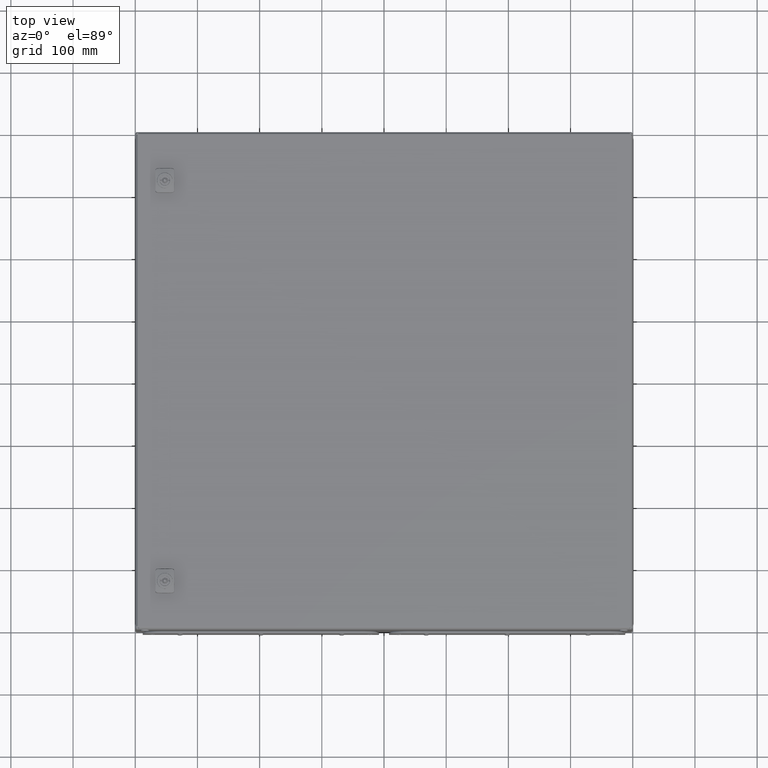
[diagram: clean part render]
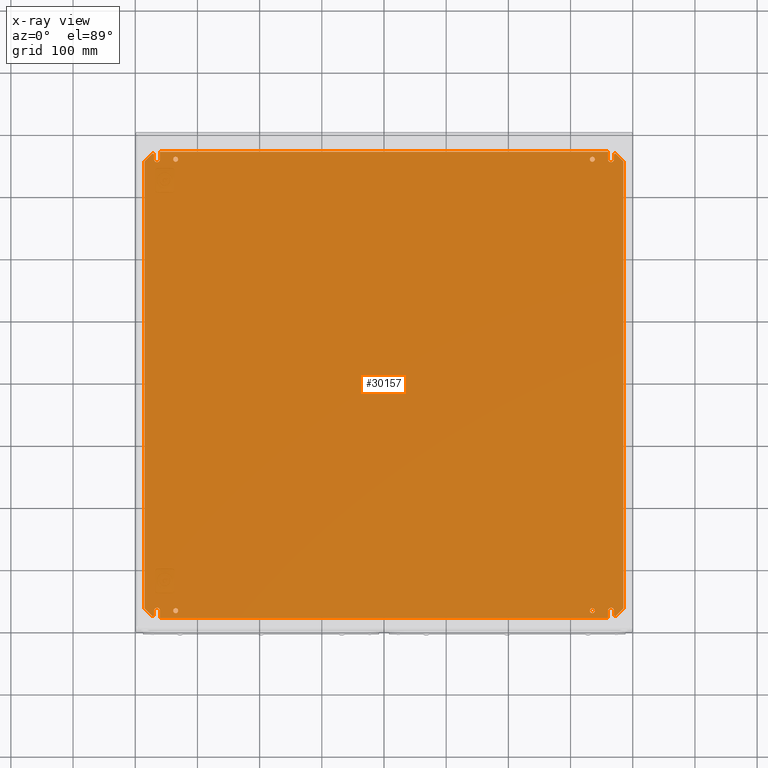
[diagram: x-ray — body ghosted, one internal face saturated and labeled with its STEP entity id]
A machine part, top view, then the same camera in x-ray: the body is ghosted and one INTERNAL B-rep face — a face not visible from any outside direction — is saturated and labeled: STEP entity #30157.
In plain terms, the highlighted planar face has unit normal (0, 0, 1).
Its self-contained STEP definition (entity closure, byte-faithful):
#29948 = EDGE_CURVE ( 'NONE', #29949, #30089, #35826, .T. ) ;
#29949 = VERTEX_POINT ( 'NONE', #35817 ) ;
#30023 = VERTEX_POINT ( 'NONE', #35988 ) ;
#30028 = EDGE_CURVE ( 'NONE', #30029, #30023, #35981, .T. ) ;
#30029 = VERTEX_POINT ( 'NONE', #35974 ) ;
#30054 = VERTEX_POINT ( 'NONE', #36048 ) ;
#30056 = EDGE_CURVE ( 'NONE', #30054, #30058, #36042, .T. ) ;
#30058 = VERTEX_POINT ( 'NONE', #36034 ) ;
#30089 = VERTEX_POINT ( 'NONE', #36117 ) ;
#30091 = VERTEX_POINT ( 'NONE', #36115 ) ;
#30093 = ORIENTED_EDGE ( 'NONE', *, *, #30096, .T. ) ;
#30096 = EDGE_CURVE ( 'NONE', #30091, #30097, #36110, .T. ) ;
#30097 = VERTEX_POINT ( 'NONE', #36104 ) ;
#30098 = ORIENTED_EDGE ( 'NONE', *, *, #30099, .T. ) ;
#30099 = EDGE_CURVE ( 'NONE', #30097, #30101, #36100, .T. ) ;
#30101 = VERTEX_POINT ( 'NONE', #36093 ) ;
#30102 = ORIENTED_EDGE ( 'NONE', *, *, #30104, .F. ) ;
#30104 = EDGE_CURVE ( 'NONE', #30106, #30101, #36088, .T. ) ;
#30106 = VERTEX_POINT ( 'NONE', #36082 ) ;
#30108 = VERTEX_POINT ( 'NONE', #36079 ) ;
#30110 = ORIENTED_EDGE ( 'NONE', *, *, #30112, .T. ) ;
#30112 = EDGE_CURVE ( 'NONE', #30089, #29949, #36073, .T. ) ;
#30113 = EDGE_LOOP ( 'NONE', ( #30114, #30118 ) ) ;
#30114 = ORIENTED_EDGE ( 'NONE', *, *, #30116, .F. ) ;
#30116 = EDGE_CURVE ( 'NONE', #30058, #30054, #36206, .T. ) ;
#30118 = ORIENTED_EDGE ( 'NONE', *, *, #30056, .F. ) ;
#30122 = EDGE_LOOP ( 'NONE', ( #30124, #30126 ) ) ;
#30124 = ORIENTED_EDGE ( 'NONE', *, *, #30028, .T. ) ;
#30126 = ORIENTED_EDGE ( 'NONE', *, *, #30127, .T. ) ;
#30127 = EDGE_CURVE ( 'NONE', #30023, #30029, #36196, .T. ) ;
#30129 = EDGE_LOOP ( 'NONE', ( #30131, #30136 ) ) ;
#30131 = ORIENTED_EDGE ( 'NONE', *, *, #30134, .F. ) ;
#30134 = EDGE_CURVE ( 'NONE', #30153, #30147, #36185, .T. ) ;
#30136 = ORIENTED_EDGE ( 'NONE', *, *, #30152, .F. ) ;
#30147 = VERTEX_POINT ( 'NONE', #36152 ) ;
#30152 = EDGE_CURVE ( 'NONE', #30147, #30153, #36146, .T. ) ;
#30153 = VERTEX_POINT ( 'NONE', #36148 ) ;
#30157 = ADVANCED_FACE ( 'NONE', ( #36273, #36271, #36270, #36268, #36266 ), #36261, .T. ) ;
#30161 = EDGE_LOOP ( 'NONE', ( #30163, #30110 ) ) ;
#30163 = ORIENTED_EDGE ( 'NONE', *, *, #29948, .T. ) ;
#30168 = EDGE_CURVE ( 'NONE', #30215, #30216, #36237, .T. ) ;
#30171 = ORIENTED_EDGE ( 'NONE', *, *, #30173, .F. ) ;
#30173 = EDGE_CURVE ( 'NONE', #30175, #30216, #36229, .T. ) ;
#30175 = VERTEX_POINT ( 'NONE', #36221 ) ;
#30176 = ORIENTED_EDGE ( 'NONE', *, *, #30177, .F. ) ;
#30177 = EDGE_CURVE ( 'NONE', #30179, #30175, #36216, .T. ) ;
#30179 = VERTEX_POINT ( 'NONE', #36354 ) ;
#30181 = ORIENTED_EDGE ( 'NONE', *, *, #30184, .F. ) ;
#30184 = EDGE_CURVE ( 'NONE', #30186, #30179, #36350, .T. ) ;
#30186 = VERTEX_POINT ( 'NONE', #36343 ) ;
#30188 = ORIENTED_EDGE ( 'NONE', *, *, #30189, .F. ) ;
#30189 = EDGE_CURVE ( 'NONE', #30190, #30186, #36338, .T. ) ;
#30190 = VERTEX_POINT ( 'NONE', #36329 ) ;
#30191 = ORIENTED_EDGE ( 'NONE', *, *, #30193, .T. ) ;
#30193 = EDGE_CURVE ( 'NONE', #30239, #30241, #36325, .T. ) ;
#30195 = ORIENTED_EDGE ( 'NONE', *, *, #30197, .T. ) ;
#30197 = EDGE_CURVE ( 'NONE', #30241, #30199, #36314, .T. ) ;
#30199 = VERTEX_POINT ( 'NONE', #36307 ) ;
#30201 = ORIENTED_EDGE ( 'NONE', *, *, #30202, .T. ) ;
#30202 = EDGE_CURVE ( 'NONE', #30199, #30203, #36302, .T. ) ;
#30203 = VERTEX_POINT ( 'NONE', #36295 ) ;
#30205 = ORIENTED_EDGE ( 'NONE', *, *, #30207, .T. ) ;
#30207 = EDGE_CURVE ( 'NONE', #30203, #30209, #36289, .T. ) ;
#30209 = VERTEX_POINT ( 'NONE', #36425 ) ;
#30212 = ORIENTED_EDGE ( 'NONE', *, *, #30214, .T. ) ;
#30214 = EDGE_CURVE ( 'NONE', #30209, #30215, #36421, .T. ) ;
#30215 = VERTEX_POINT ( 'NONE', #36415 ) ;
#30216 = VERTEX_POINT ( 'NONE', #36413 ) ;
#30217 = ORIENTED_EDGE ( 'NONE', *, *, #30218, .F. ) ;
#30218 = EDGE_CURVE ( 'NONE', #30108, #30106, #36407, .T. ) ;
#30220 = ORIENTED_EDGE ( 'NONE', *, *, #30221, .F. ) ;
#30221 = EDGE_CURVE ( 'NONE', #30224, #30108, #36396, .T. ) ;
#30224 = VERTEX_POINT ( 'NONE', #36389 ) ;
#30226 = ORIENTED_EDGE ( 'NONE', *, *, #30228, .F. ) ;
#30228 = EDGE_CURVE ( 'NONE', #30229, #30224, #36383, .T. ) ;
#30229 = VERTEX_POINT ( 'NONE', #36375 ) ;
#30230 = ORIENTED_EDGE ( 'NONE', *, *, #30231, .F. ) ;
#30231 = EDGE_CURVE ( 'NONE', #30233, #30229, #36371, .T. ) ;
#30233 = VERTEX_POINT ( 'NONE', #36364 ) ;
#30235 = ORIENTED_EDGE ( 'NONE', *, *, #30237, .T. ) ;
#30237 = EDGE_CURVE ( 'NONE', #30233, #30239, #36360, .T. ) ;
#30239 = VERTEX_POINT ( 'NONE', #36499 ) ;
#30241 = VERTEX_POINT ( 'NONE', #36497 ) ;
#30244 = EDGE_LOOP ( 'NONE', ( #30245, #30093, #30098, #30102, #30217, #30220, #30226, #30230, #30235, #30191, #30195, #30201, #30205, #30212, #30323, #30171, #30176, #30181, #30188, #30298, #30304, #30308, #30313, #30318 ) ) ;
#30245 = ORIENTED_EDGE ( 'NONE', *, *, #30246, .T. ) ;
#30246 = EDGE_CURVE ( 'NONE', #30248, #30091, #36490, .T. ) ;
#30248 = VERTEX_POINT ( 'NONE', #36482 ) ;
#30298 = ORIENTED_EDGE ( 'NONE', *, *, #30300, .F. ) ;
#30300 = EDGE_CURVE ( 'NONE', #30302, #30190, #36534, .T. ) ;
#30302 = VERTEX_POINT ( 'NONE', #36526 ) ;
#30304 = ORIENTED_EDGE ( 'NONE', *, *, #30306, .T. ) ;
#30306 = EDGE_CURVE ( 'NONE', #30302, #30307, #36522, .T. ) ;
#30307 = VERTEX_POINT ( 'NONE', #36515 ) ;
#30308 = ORIENTED_EDGE ( 'NONE', *, *, #30309, .T. ) ;
#30309 = EDGE_CURVE ( 'NONE', #30307, #30311, #36510, .T. ) ;
#30311 = VERTEX_POINT ( 'NONE', #36503 ) ;
#30313 = ORIENTED_EDGE ( 'NONE', *, *, #30315, .T. ) ;
#30315 = EDGE_CURVE ( 'NONE', #30311, #30317, #36646, .T. ) ;
#30317 = VERTEX_POINT ( 'NONE', #36638 ) ;
#30318 = ORIENTED_EDGE ( 'NONE', *, *, #30319, .T. ) ;
#30319 = EDGE_CURVE ( 'NONE', #30317, #30248, #36634, .T. ) ;
#30323 = ORIENTED_EDGE ( 'NONE', *, *, #30168, .T. ) ;
#35817 = CARTESIAN_POINT ( 'NONE',  ( -330.9999999999999400, 362.9999999999998900, 2.499999999997726300 ) ) ;
#35819 = DIRECTION ( 'NONE',  ( -1.000000000000000000, 0.0000000000000000000, 0.0000000000000000000 ) ) ;
#35820 = DIRECTION ( 'NONE',  ( 0.0000000000000000000, 0.0000000000000000000, -1.000000000000000000 ) ) ;
#35822 = CARTESIAN_POINT ( 'NONE',  ( -334.9999999999999400, 362.9999999999998900, 2.499999999997726300 ) ) ;
#35824 = AXIS2_PLACEMENT_3D ( 'NONE', #35822, #35820, #35819 ) ;
#35826 = CIRCLE ( 'NONE', #35824, 4.000000000000003600 ) ;
#35974 = CARTESIAN_POINT ( 'NONE',  ( 338.9999999999999400, -362.9999999999998900, 2.499999999997726300 ) ) ;
#35976 = DIRECTION ( 'NONE',  ( 1.000000000000000000, 0.0000000000000000000, 0.0000000000000000000 ) ) ;
#35977 = DIRECTION ( 'NONE',  ( 0.0000000000000000000, 0.0000000000000000000, -1.000000000000000000 ) ) ;
#35978 = CARTESIAN_POINT ( 'NONE',  ( 334.9999999999999400, -362.9999999999998900, 2.499999999997726300 ) ) ;
#35980 = AXIS2_PLACEMENT_3D ( 'NONE', #35978, #35977, #35976 ) ;
#35981 = CIRCLE ( 'NONE', #35980, 4.000000000000003600 ) ;
#35988 = CARTESIAN_POINT ( 'NONE',  ( 330.9999999999999400, -362.9999999999998900, 2.499999999997726300 ) ) ;
#36034 = CARTESIAN_POINT ( 'NONE',  ( -330.9999999999999400, -362.9999999999998900, 2.499999999997726300 ) ) ;
#36036 = DIRECTION ( 'NONE',  ( -1.000000000000000000, 0.0000000000000000000, 0.0000000000000000000 ) ) ;
#36038 = DIRECTION ( 'NONE',  ( 0.0000000000000000000, 0.0000000000000000000, 1.000000000000000000 ) ) ;
#36039 = CARTESIAN_POINT ( 'NONE',  ( -334.9999999999999400, -362.9999999999998900, 2.499999999997726300 ) ) ;
#36040 = AXIS2_PLACEMENT_3D ( 'NONE', #36039, #36038, #36036 ) ;
#36042 = CIRCLE ( 'NONE', #36040, 4.000000000000003600 ) ;
#36048 = CARTESIAN_POINT ( 'NONE',  ( -338.9999999999999400, -362.9999999999998900, 2.499999999997726300 ) ) ;
#36067 = DIRECTION ( 'NONE',  ( -1.000000000000000000, 0.0000000000000000000, 0.0000000000000000000 ) ) ;
#36068 = DIRECTION ( 'NONE',  ( 0.0000000000000000000, 0.0000000000000000000, -1.000000000000000000 ) ) ;
#36070 = CARTESIAN_POINT ( 'NONE',  ( -334.9999999999999400, 362.9999999999998900, 2.499999999997726300 ) ) ;
#36071 = AXIS2_PLACEMENT_3D ( 'NONE', #36070, #36068, #36067 ) ;
#36073 = CIRCLE ( 'NONE', #36071, 4.000000000000003600 ) ;
#36075 = CARTESIAN_POINT ( 'NONE',  ( -334.9999999999999400, -362.9999999999998900, 2.499999999997726300 ) ) ;
#36079 = CARTESIAN_POINT ( 'NONE',  ( -369.7500000000000000, -369.9999999999998900, 2.499999999997726300 ) ) ;
#36082 = CARTESIAN_POINT ( 'NONE',  ( -373.1642135623730500, -371.4142135623730500, 2.499999999997726300 ) ) ;
#36083 = DIRECTION ( 'NONE',  ( -0.7071067811865507900, 0.7071067811865441300, 0.0000000000000000000 ) ) ;
#36085 = VECTOR ( 'NONE', #36083, 1000.000000000000100 ) ;
#36086 = CARTESIAN_POINT ( 'NONE',  ( -373.1642135623730500, -371.4142135623730500, 2.499999999997726300 ) ) ;
#36088 = LINE ( 'NONE', #36086, #36085 ) ;
#36093 = CARTESIAN_POINT ( 'NONE',  ( -384.9999999999998900, -359.5784271247462100, 2.500000000000000000 ) ) ;
#36095 = DIRECTION ( 'NONE',  ( 1.480297366166875800E-016, -1.000000000000000000, 0.0000000000000000000 ) ) ;
#36096 = VECTOR ( 'NONE', #36095, 1000.000000000000000 ) ;
#36098 = CARTESIAN_POINT ( 'NONE',  ( -385.0000000000000000, 374.9999999999997700, 2.500000000000000000 ) ) ;
#36100 = LINE ( 'NONE', #36098, #36096 ) ;
#36104 = CARTESIAN_POINT ( 'NONE',  ( -385.0000000000000000, 359.5784271247462100, 2.499999999997726300 ) ) ;
#36106 = DIRECTION ( 'NONE',  ( -0.7071067811865507900, -0.7071067811865441300, 0.0000000000000000000 ) ) ;
#36108 = VECTOR ( 'NONE', #36106, 1000.000000000000100 ) ;
#36109 = CARTESIAN_POINT ( 'NONE',  ( -373.1642135623730500, 371.4142135623730500, 2.499999999997726300 ) ) ;
#36110 = LINE ( 'NONE', #36109, #36108 ) ;
#36115 = CARTESIAN_POINT ( 'NONE',  ( -373.1642135623730500, 371.4142135623730500, 2.499999999997726300 ) ) ;
#36117 = CARTESIAN_POINT ( 'NONE',  ( -338.9999999999999400, 362.9999999999998900, 2.499999999997726300 ) ) ;
#36140 = DIRECTION ( 'NONE',  ( 1.000000000000000000, 0.0000000000000000000, 0.0000000000000000000 ) ) ;
#36141 = DIRECTION ( 'NONE',  ( 0.0000000000000000000, 0.0000000000000000000, 1.000000000000000000 ) ) ;
#36143 = CARTESIAN_POINT ( 'NONE',  ( 334.9999999999999400, 362.9999999999998900, 2.499999999997726300 ) ) ;
#36145 = AXIS2_PLACEMENT_3D ( 'NONE', #36143, #36141, #36140 ) ;
#36146 = CIRCLE ( 'NONE', #36145, 4.000000000000003600 ) ;
#36148 = CARTESIAN_POINT ( 'NONE',  ( 338.9999999999999400, 362.9999999999998900, 2.499999999997726300 ) ) ;
#36152 = CARTESIAN_POINT ( 'NONE',  ( 330.9999999999999400, 362.9999999999998900, 2.499999999997726300 ) ) ;
#36179 = DIRECTION ( 'NONE',  ( 1.000000000000000000, 0.0000000000000000000, 0.0000000000000000000 ) ) ;
#36181 = DIRECTION ( 'NONE',  ( 0.0000000000000000000, 0.0000000000000000000, 1.000000000000000000 ) ) ;
#36182 = CARTESIAN_POINT ( 'NONE',  ( 334.9999999999999400, 362.9999999999998900, 2.499999999997726300 ) ) ;
#36183 = AXIS2_PLACEMENT_3D ( 'NONE', #36182, #36181, #36179 ) ;
#36185 = CIRCLE ( 'NONE', #36183, 4.000000000000003600 ) ;
#36190 = DIRECTION ( 'NONE',  ( 1.000000000000000000, 0.0000000000000000000, 0.0000000000000000000 ) ) ;
#36192 = DIRECTION ( 'NONE',  ( 0.0000000000000000000, 0.0000000000000000000, -1.000000000000000000 ) ) ;
#36193 = CARTESIAN_POINT ( 'NONE',  ( 334.9999999999999400, -362.9999999999998900, 2.499999999997726300 ) ) ;
#36195 = AXIS2_PLACEMENT_3D ( 'NONE', #36193, #36192, #36190 ) ;
#36196 = CIRCLE ( 'NONE', #36195, 4.000000000000003600 ) ;
#36201 = DIRECTION ( 'NONE',  ( -1.000000000000000000, 0.0000000000000000000, 0.0000000000000000000 ) ) ;
#36203 = DIRECTION ( 'NONE',  ( 0.0000000000000000000, 0.0000000000000000000, 1.000000000000000000 ) ) ;
#36205 = AXIS2_PLACEMENT_3D ( 'NONE', #36075, #36203, #36201 ) ;
#36206 = CIRCLE ( 'NONE', #36205, 4.000000000000003600 ) ;
#36211 = DIRECTION ( 'NONE',  ( 0.0000000000000000000, 0.0000000000000000000, -1.000000000000000000 ) ) ;
#36212 = CARTESIAN_POINT ( 'NONE',  ( 371.7500000000000000, 369.9999999999998900, 2.499999999997726300 ) ) ;
#36214 = AXIS2_PLACEMENT_3D ( 'NONE', #36212, #36211, #36355 ) ;
#36216 = CIRCLE ( 'NONE', #36214, 2.000000000000001800 ) ;
#36221 = CARTESIAN_POINT ( 'NONE',  ( 373.1642135623730500, 371.4142135623730500, 2.499999999997726300 ) ) ;
#36223 = DIRECTION ( 'NONE',  ( 0.7071067811865507900, -0.7071067811865441300, 0.0000000000000000000 ) ) ;
#36225 = VECTOR ( 'NONE', #36223, 1000.000000000000100 ) ;
#36226 = CARTESIAN_POINT ( 'NONE',  ( 373.1642135623730500, 371.4142135623730500, 2.499999999997726300 ) ) ;
#36229 = LINE ( 'NONE', #36226, #36225 ) ;
#36233 = DIRECTION ( 'NONE',  ( 0.0000000000000000000, 1.000000000000000000, 0.0000000000000000000 ) ) ;
#36234 = VECTOR ( 'NONE', #36233, 1000.000000000000000 ) ;
#36236 = CARTESIAN_POINT ( 'NONE',  ( 385.0000000000000000, 374.9999999999998900, 2.500000000000000000 ) ) ;
#36237 = LINE ( 'NONE', #36236, #36234 ) ;
#36255 = DIRECTION ( 'NONE',  ( 1.000000000000000000, 0.0000000000000000000, 0.0000000000000000000 ) ) ;
#36256 = DIRECTION ( 'NONE',  ( 0.0000000000000000000, 0.0000000000000000000, 1.000000000000000000 ) ) ;
#36258 = CARTESIAN_POINT ( 'NONE',  ( -384.9999999999998900, -375.0000000000000000, 2.500000000000000000 ) ) ;
#36259 = AXIS2_PLACEMENT_3D ( 'NONE', #36258, #36256, #36255 ) ;
#36261 = PLANE ( 'NONE',  #36259 ) ;
#36266 = FACE_OUTER_BOUND ( 'NONE', #30244, .T. ) ;
#36268 = FACE_BOUND ( 'NONE', #30129, .T. ) ;
#36270 = FACE_BOUND ( 'NONE', #30122, .T. ) ;
#36271 = FACE_BOUND ( 'NONE', #30113, .T. ) ;
#36273 = FACE_BOUND ( 'NONE', #30161, .T. ) ;
#36285 = DIRECTION ( 'NONE',  ( 0.0000000000000000000, 0.0000000000000000000, 1.000000000000000000 ) ) ;
#36286 = CARTESIAN_POINT ( 'NONE',  ( 371.7500000000000000, -369.9999999999998900, 2.499999999997726300 ) ) ;
#36287 = AXIS2_PLACEMENT_3D ( 'NONE', #36286, #36285, #36427 ) ;
#36289 = CIRCLE ( 'NONE', #36287, 2.000000000000001800 ) ;
#36295 = CARTESIAN_POINT ( 'NONE',  ( 369.7500000000000000, -369.9999999999998900, 2.499999999997726300 ) ) ;
#36297 = DIRECTION ( 'NONE',  ( 0.0000000000000000000, -1.000000000000000000, 0.0000000000000000000 ) ) ;
#36299 = VECTOR ( 'NONE', #36297, 1000.000000000000000 ) ;
#36301 = CARTESIAN_POINT ( 'NONE',  ( 369.7500000000000000, -362.9999999999998900, 2.499999999997726300 ) ) ;
#36302 = LINE ( 'NONE', #36301, #36299 ) ;
#36307 = CARTESIAN_POINT ( 'NONE',  ( 369.7500000000000000, -362.9999999999998900, 2.499999999997726300 ) ) ;
#36308 = DIRECTION ( 'NONE',  ( 1.000000000000000000, 0.0000000000000000000, 0.0000000000000000000 ) ) ;
#36310 = DIRECTION ( 'NONE',  ( 0.0000000000000000000, 0.0000000000000000000, -1.000000000000000000 ) ) ;
#36311 = CARTESIAN_POINT ( 'NONE',  ( 365.0000000000000000, -362.9999999999998900, 2.499999999997726300 ) ) ;
#36313 = AXIS2_PLACEMENT_3D ( 'NONE', #36311, #36310, #36308 ) ;
#36314 = CIRCLE ( 'NONE', #36313, 4.750000000000032000 ) ;
#36320 = DIRECTION ( 'NONE',  ( 0.0000000000000000000, 1.000000000000000000, 0.0000000000000000000 ) ) ;
#36321 = VECTOR ( 'NONE', #36320, 1000.000000000000000 ) ;
#36324 = CARTESIAN_POINT ( 'NONE',  ( 360.2499999999999400, -374.9999999999998900, 2.499999999997726300 ) ) ;
#36325 = LINE ( 'NONE', #36324, #36321 ) ;
#36329 = CARTESIAN_POINT ( 'NONE',  ( 360.2499999999999400, 362.9999999999998900, 2.499999999997726300 ) ) ;
#36331 = DIRECTION ( 'NONE',  ( 1.000000000000000000, 0.0000000000000000000, 0.0000000000000000000 ) ) ;
#36333 = DIRECTION ( 'NONE',  ( 0.0000000000000000000, 0.0000000000000000000, 1.000000000000000000 ) ) ;
#36335 = CARTESIAN_POINT ( 'NONE',  ( 365.0000000000000000, 362.9999999999998900, 2.499999999997726300 ) ) ;
#36336 = AXIS2_PLACEMENT_3D ( 'NONE', #36335, #36333, #36331 ) ;
#36338 = CIRCLE ( 'NONE', #36336, 4.750000000000032000 ) ;
#36343 = CARTESIAN_POINT ( 'NONE',  ( 369.7500000000000000, 362.9999999999998900, 2.499999999997726300 ) ) ;
#36345 = DIRECTION ( 'NONE',  ( 0.0000000000000000000, 1.000000000000000000, 0.0000000000000000000 ) ) ;
#36346 = VECTOR ( 'NONE', #36345, 1000.000000000000000 ) ;
#36349 = CARTESIAN_POINT ( 'NONE',  ( 369.7500000000000000, 362.9999999999998900, 2.499999999997726300 ) ) ;
#36350 = LINE ( 'NONE', #36349, #36346 ) ;
#36354 = CARTESIAN_POINT ( 'NONE',  ( 369.7500000000000000, 369.9999999999998900, 2.499999999997726300 ) ) ;
#36355 = DIRECTION ( 'NONE',  ( -1.000000000000000000, 0.0000000000000000000, 0.0000000000000000000 ) ) ;
#36357 = VECTOR ( 'NONE', #36500, 1000.000000000000000 ) ;
#36358 = CARTESIAN_POINT ( 'NONE',  ( -384.9999999999998900, -375.0000000000000000, 2.500000000000000000 ) ) ;
#36360 = LINE ( 'NONE', #36358, #36357 ) ;
#36364 = CARTESIAN_POINT ( 'NONE',  ( -360.2499999999999400, -374.9999999999998900, 2.499999999997726300 ) ) ;
#36366 = DIRECTION ( 'NONE',  ( 0.0000000000000000000, 1.000000000000000000, 0.0000000000000000000 ) ) ;
#36368 = VECTOR ( 'NONE', #36366, 1000.000000000000000 ) ;
#36369 = CARTESIAN_POINT ( 'NONE',  ( -360.2499999999999400, -374.9999999999998900, 2.499999999997726300 ) ) ;
#36371 = LINE ( 'NONE', #36369, #36368 ) ;
#36375 = CARTESIAN_POINT ( 'NONE',  ( -360.2499999999999400, -362.9999999999998900, 2.499999999997726300 ) ) ;
#36377 = DIRECTION ( 'NONE',  ( -1.000000000000000000, 0.0000000000000000000, 0.0000000000000000000 ) ) ;
#36379 = DIRECTION ( 'NONE',  ( 0.0000000000000000000, 0.0000000000000000000, 1.000000000000000000 ) ) ;
#36380 = CARTESIAN_POINT ( 'NONE',  ( -365.0000000000000000, -362.9999999999998900, 2.499999999997726300 ) ) ;
#36382 = AXIS2_PLACEMENT_3D ( 'NONE', #36380, #36379, #36377 ) ;
#36383 = CIRCLE ( 'NONE', #36382, 4.750000000000032000 ) ;
#36389 = CARTESIAN_POINT ( 'NONE',  ( -369.7500000000000000, -362.9999999999998900, 2.499999999997726300 ) ) ;
#36391 = DIRECTION ( 'NONE',  ( 0.0000000000000000000, -1.000000000000000000, 0.0000000000000000000 ) ) ;
#36393 = VECTOR ( 'NONE', #36391, 1000.000000000000000 ) ;
#36395 = CARTESIAN_POINT ( 'NONE',  ( -369.7500000000000000, -362.9999999999998900, 2.499999999997726300 ) ) ;
#36396 = LINE ( 'NONE', #36395, #36393 ) ;
#36400 = DIRECTION ( 'NONE',  ( 1.000000000000000000, 0.0000000000000000000, 0.0000000000000000000 ) ) ;
#36402 = DIRECTION ( 'NONE',  ( 0.0000000000000000000, 0.0000000000000000000, -1.000000000000000000 ) ) ;
#36403 = CARTESIAN_POINT ( 'NONE',  ( -371.7500000000000000, -369.9999999999998900, 2.499999999997726300 ) ) ;
#36405 = AXIS2_PLACEMENT_3D ( 'NONE', #36403, #36402, #36400 ) ;
#36407 = CIRCLE ( 'NONE', #36405, 2.000000000000001800 ) ;
#36413 = CARTESIAN_POINT ( 'NONE',  ( 385.0000000000000000, 359.5784271247462100, 2.499999999997726300 ) ) ;
#36415 = CARTESIAN_POINT ( 'NONE',  ( 385.0000000000000000, -359.5784271247462100, 2.499999999997726300 ) ) ;
#36416 = DIRECTION ( 'NONE',  ( 0.7071067811865507900, 0.7071067811865441300, 0.0000000000000000000 ) ) ;
#36417 = VECTOR ( 'NONE', #36416, 1000.000000000000100 ) ;
#36420 = CARTESIAN_POINT ( 'NONE',  ( 373.1642135623730500, -371.4142135623730500, 2.499999999997726300 ) ) ;
#36421 = LINE ( 'NONE', #36420, #36417 ) ;
#36425 = CARTESIAN_POINT ( 'NONE',  ( 373.1642135623730500, -371.4142135623730500, 2.499999999997726300 ) ) ;
#36427 = DIRECTION ( 'NONE',  ( -1.000000000000000000, 0.0000000000000000000, 0.0000000000000000000 ) ) ;
#36482 = CARTESIAN_POINT ( 'NONE',  ( -369.7500000000000000, 369.9999999999998900, 2.499999999997726300 ) ) ;
#36484 = DIRECTION ( 'NONE',  ( 1.000000000000000000, 0.0000000000000000000, 0.0000000000000000000 ) ) ;
#36486 = DIRECTION ( 'NONE',  ( 0.0000000000000000000, 0.0000000000000000000, 1.000000000000000000 ) ) ;
#36488 = CARTESIAN_POINT ( 'NONE',  ( -371.7500000000000000, 369.9999999999998900, 2.499999999997726300 ) ) ;
#36489 = AXIS2_PLACEMENT_3D ( 'NONE', #36488, #36486, #36484 ) ;
#36490 = CIRCLE ( 'NONE', #36489, 2.000000000000001800 ) ;
#36497 = CARTESIAN_POINT ( 'NONE',  ( 360.2499999999999400, -362.9999999999998900, 2.499999999997726300 ) ) ;
#36499 = CARTESIAN_POINT ( 'NONE',  ( 360.2499999999999400, -374.9999999999998900, 2.499999999997726300 ) ) ;
#36500 = DIRECTION ( 'NONE',  ( 1.000000000000000000, 1.441848083928775000E-016, 0.0000000000000000000 ) ) ;
#36503 = CARTESIAN_POINT ( 'NONE',  ( -360.2499999999999400, 362.9999999999998900, 2.499999999997726300 ) ) ;
#36505 = DIRECTION ( 'NONE',  ( 0.0000000000000000000, -1.000000000000000000, 0.0000000000000000000 ) ) ;
#36507 = VECTOR ( 'NONE', #36505, 1000.000000000000000 ) ;
#36509 = CARTESIAN_POINT ( 'NONE',  ( -360.2499999999999400, 374.9999999999998900, 2.499999999997726300 ) ) ;
#36510 = LINE ( 'NONE', #36509, #36507 ) ;
#36515 = CARTESIAN_POINT ( 'NONE',  ( -360.2499999999999400, 374.9999999999997700, 2.500000000000000000 ) ) ;
#36517 = DIRECTION ( 'NONE',  ( -1.000000000000000000, -1.441848083928774700E-016, 0.0000000000000000000 ) ) ;
#36519 = VECTOR ( 'NONE', #36517, 1000.000000000000000 ) ;
#36520 = CARTESIAN_POINT ( 'NONE',  ( -385.0000000000000000, 374.9999999999997700, 2.500000000000000000 ) ) ;
#36522 = LINE ( 'NONE', #36520, #36519 ) ;
#36526 = CARTESIAN_POINT ( 'NONE',  ( 360.2499999999999400, 374.9999999999998900, 2.499999999997726300 ) ) ;
#36529 = DIRECTION ( 'NONE',  ( 0.0000000000000000000, -1.000000000000000000, 0.0000000000000000000 ) ) ;
#36530 = VECTOR ( 'NONE', #36529, 1000.000000000000000 ) ;
#36532 = CARTESIAN_POINT ( 'NONE',  ( 360.2499999999999400, 374.9999999999998900, 2.499999999997726300 ) ) ;
#36534 = LINE ( 'NONE', #36532, #36530 ) ;
#36629 = DIRECTION ( 'NONE',  ( 0.0000000000000000000, 1.000000000000000000, 0.0000000000000000000 ) ) ;
#36630 = VECTOR ( 'NONE', #36629, 1000.000000000000000 ) ;
#36633 = CARTESIAN_POINT ( 'NONE',  ( -369.7500000000000000, 362.9999999999998900, 2.499999999997726300 ) ) ;
#36634 = LINE ( 'NONE', #36633, #36630 ) ;
#36638 = CARTESIAN_POINT ( 'NONE',  ( -369.7500000000000000, 362.9999999999998900, 2.499999999997726300 ) ) ;
#36640 = DIRECTION ( 'NONE',  ( -1.000000000000000000, 0.0000000000000000000, 0.0000000000000000000 ) ) ;
#36641 = DIRECTION ( 'NONE',  ( 0.0000000000000000000, 0.0000000000000000000, -1.000000000000000000 ) ) ;
#36642 = CARTESIAN_POINT ( 'NONE',  ( -365.0000000000000000, 362.9999999999998900, 2.499999999997726300 ) ) ;
#36644 = AXIS2_PLACEMENT_3D ( 'NONE', #36642, #36641, #36640 ) ;
#36646 = CIRCLE ( 'NONE', #36644, 4.750000000000032000 ) ;